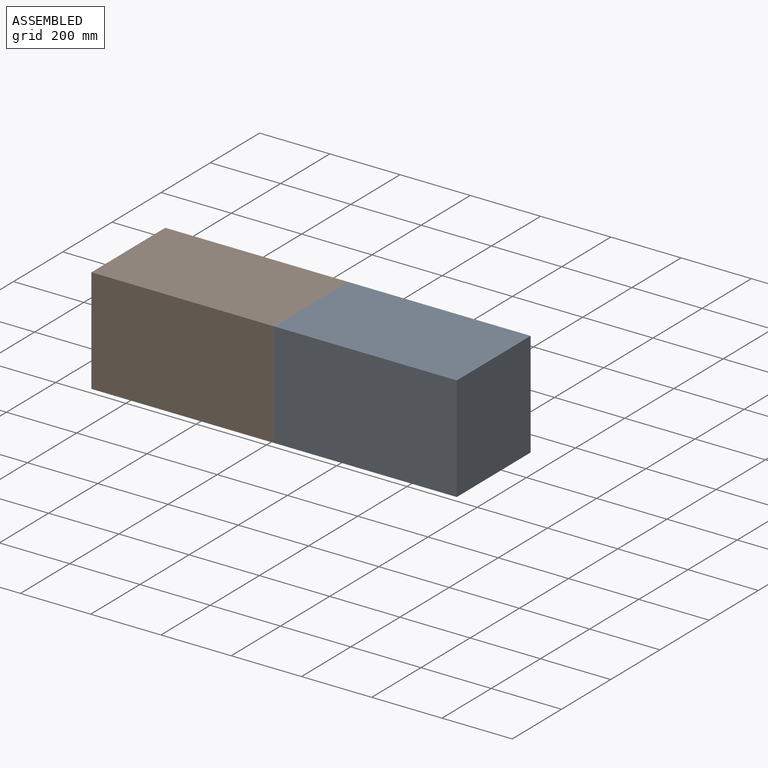
[diagram: assembled view]
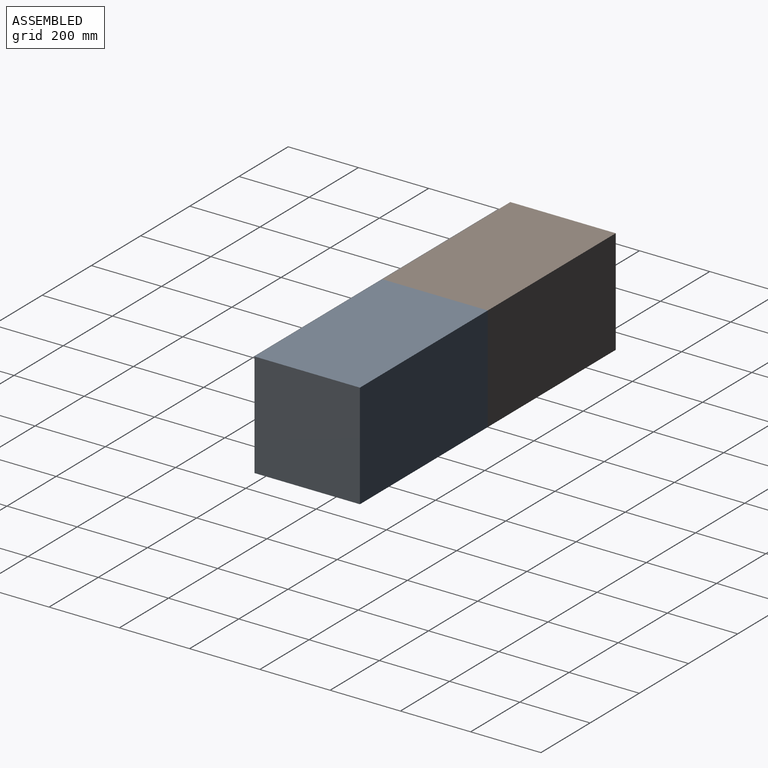
[diagram: assembled view, second angle]
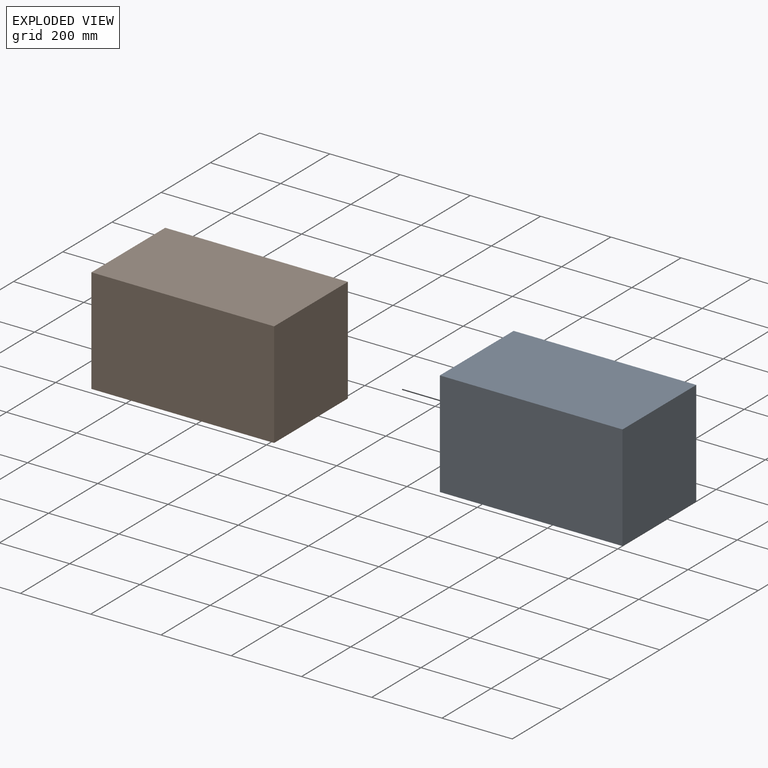
[diagram: exploded view]
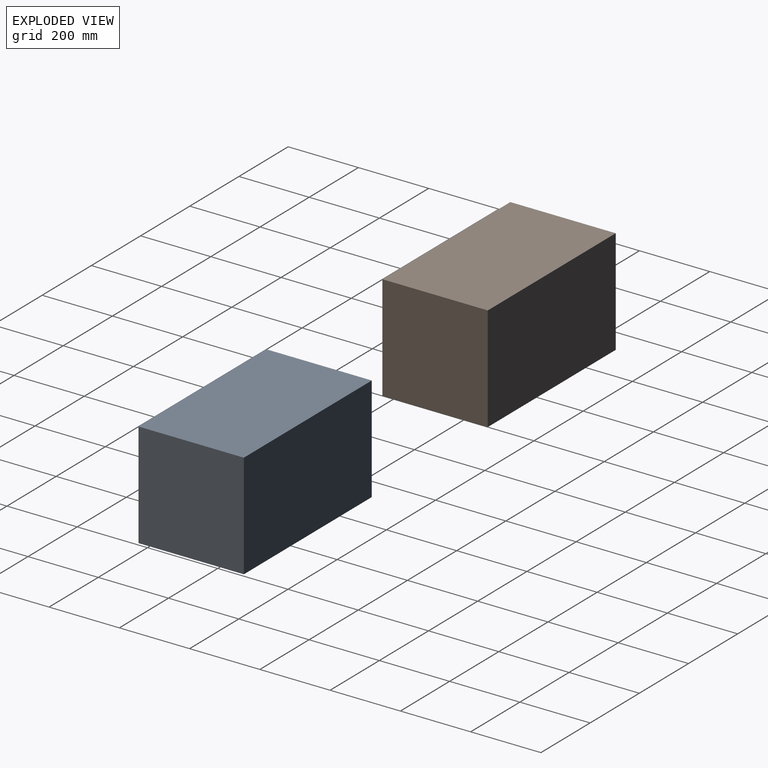
[diagram: exploded view, second angle]
ASSEMBLY  parts=2 mates=3
PART A: 6 faces, bbox 520x300x300 mm
  f0: plane 520x300mm, normal (0,0,1), area 156000mm2, adj f1,f3,f4,f5
  f1: plane 300x300mm, normal (-1,0,0), area 90000mm2, adj f0,f2,f4,f5
  f2: plane 520x300mm, normal (0,0,-1), area 156000mm2, adj f1,f3,f4,f5
  f3: plane 300x300mm, normal (1,0,0), area 90000mm2, adj f0,f2,f4,f5
  f4: plane 520x300mm, normal (0,-1,0), area 156000mm2, adj f0,f1,f2,f3
  f5: plane 520x300mm, normal (0,1,0), area 156000mm2, adj f0,f1,f2,f3
PART B: same geometry as A
PLACE A t=(429.4,89.27,66.18)mm
PLACE B t=(-90.6,89.27,66.18)mm
MATE planar B.f3 <-> A.f1  axis (1,0,0) through (429.4,-210.73,216.18)mm
MATE planar B.f0 <-> A.f0  axis (0,0,1) through (169.4,-60.73,366.18)mm
MATE planar B.f4 <-> A.f4  axis (0,-1,0) through (169.4,-210.73,216.18)mm
